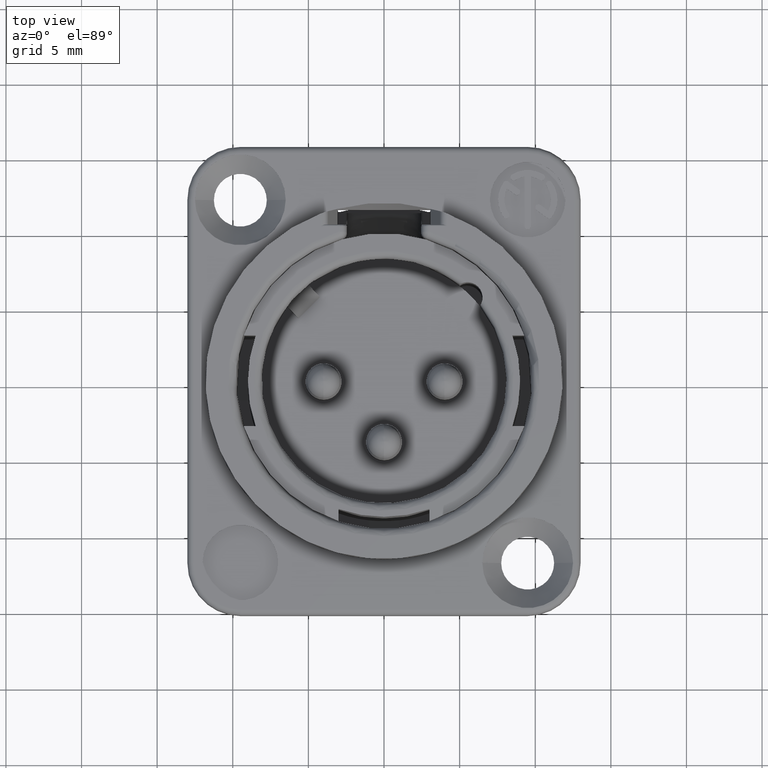
[diagram: clean part render]
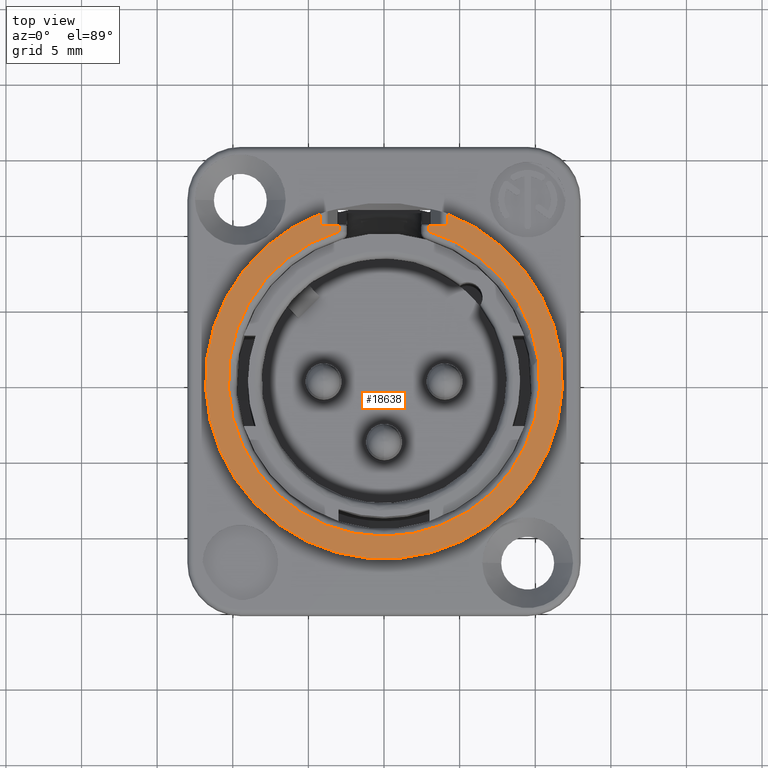
[diagram: same view with one face highlighted and labeled with its STEP entity id]
A machine part, top view. The second image highlights one B-rep face of the part: STEP entity #18638.
In plain terms, the highlighted planar face has unit normal (0, 0, 1).
Its self-contained STEP definition (entity closure, byte-faithful):
#4245=DIRECTION('',(9.999999999828E-1,-6.771026219605E-12,5.864611096522E-6));
#4246=VECTOR('',#4245,1.216764306315E0);
#4247=CARTESIAN_POINT('',(2.968636455980E0,1.021264919308E1,4.699992864151E0));
#4248=LINE('',#4247,#4246);
#4249=DIRECTION('',(9.999999999828E-1,1.355373167066E-11,-5.865633015188E-6));
#4250=VECTOR('',#4249,1.216764305043E0);
#4251=CARTESIAN_POINT('',(-4.185400762274E0,1.021264919307E1,4.7E0));
#4252=LINE('',#4251,#4250);
#4253=DIRECTION('',(-7.136213583825E-9,9.999999997994E-1,-2.002863686655E-5));
#4254=VECTOR('',#4253,3.563444144183E-1);
#4255=CARTESIAN_POINT('',(-2.968636454710E0,9.856304778739E0,4.7E0));
#4256=LINE('',#4255,#4254);
#4257=CARTESIAN_POINT('',(0.E0,0.E0,4.7E0));
#4258=DIRECTION('',(0.E0,0.E0,1.E0));
#4259=DIRECTION('',(-2.883920699604E-1,9.575124093107E-1,0.E0));
#4260=AXIS2_PLACEMENT_3D('',#4257,#4258,#4259);
#4262=DIRECTION('',(-3.566350167230E-9,-9.999999997995E-1,2.002531860740E-5));
#4263=VECTOR('',#4262,3.563413691388E-1);
#4264=CARTESIAN_POINT('',(2.968636455980E0,1.021264919308E1,4.699992864151E0));
#4265=LINE('',#4264,#4263);
#4280=DIRECTION('',(0.E0,-1.E0,0.E0));
#4281=VECTOR('',#4280,8.201392332153E-1);
#4282=CARTESIAN_POINT('',(4.185400762274E0,1.103278842628E1,4.7E0));
#4283=LINE('',#4282,#4281);
#4298=CARTESIAN_POINT('',(-4.185400762274E0,1.103278842628E1,4.7E0));
#4306=CARTESIAN_POINT('',(0.E0,0.E0,4.7E0));
#4307=DIRECTION('',(0.E0,0.E0,1.E0));
#4308=DIRECTION('',(-3.546949798538E-1,9.349820700241E-1,0.E0));
#4309=AXIS2_PLACEMENT_3D('',#4306,#4307,#4308);
#4317=CARTESIAN_POINT('',(4.185400762274E0,1.103278842628E1,4.7E0));
#4374=DIRECTION('',(0.E0,1.E0,0.E0));
#4375=VECTOR('',#4374,8.201392332153E-1);
#4376=CARTESIAN_POINT('',(-4.185400762274E0,1.021264919307E1,4.7E0));
#4377=LINE('',#4376,#4375);
#4405=CARTESIAN_POINT('',(-2.968636457253E0,1.021264919309E1,4.699992862907E0));
#10815=VERTEX_POINT('',#4317);
#10816=VERTEX_POINT('',#4298);
#12418=CARTESIAN_POINT('',(-2.968603124594E0,9.856284642317E0,4.7E0));
#12419=CARTESIAN_POINT('',(2.968599760963E0,9.856285655405E0,4.7E0));
#12420=VERTEX_POINT('',#12418);
#12421=VERTEX_POINT('',#12419);
#12432=VERTEX_POINT('',#4405);
#12438=CARTESIAN_POINT('',(2.968636455980E0,1.021264919308E1,4.699992864151E0));
#12439=CARTESIAN_POINT('',(4.185400762274E0,1.021264919307E1,4.7E0));
#12440=VERTEX_POINT('',#12438);
#12441=VERTEX_POINT('',#12439);
#12442=CARTESIAN_POINT('',(-4.185400762274E0,1.021264919307E1,4.7E0));
#12443=VERTEX_POINT('',#12442);
#18617=CARTESIAN_POINT('',(0.E0,0.E0,4.7E0));
#18618=DIRECTION('',(0.E0,0.E0,1.E0));
#18619=DIRECTION('',(1.E0,0.E0,0.E0));
#18620=AXIS2_PLACEMENT_3D('',#18617,#18618,#18619);
#18621=PLANE('',#18620);
#18623=ORIENTED_EDGE('',*,*,#18622,.T.);
#18625=ORIENTED_EDGE('',*,*,#18624,.F.);
#18627=ORIENTED_EDGE('',*,*,#18626,.F.);
#18629=ORIENTED_EDGE('',*,*,#18628,.F.);
#18631=ORIENTED_EDGE('',*,*,#18630,.T.);
#18633=ORIENTED_EDGE('',*,*,#18632,.F.);
#18634=ORIENTED_EDGE('',*,*,#18609,.T.);
#18635=ORIENTED_EDGE('',*,*,#14812,.F.);
#18636=EDGE_LOOP('',(#18623,#18625,#18627,#18629,#18631,#18633,#18634,#18635));
#18637=FACE_OUTER_BOUND('',#18636,.F.);
#18638=ADVANCED_FACE('',(#18637),#18621,.T.);
#4261=CIRCLE('',#4260,1.029363645471E1);
#4310=CIRCLE('',#4309,1.18E1);
#14812=EDGE_CURVE('',#12440,#12421,#4265,.T.);
#18609=EDGE_CURVE('',#12420,#12421,#4261,.T.);
#18622=EDGE_CURVE('',#12440,#12441,#4248,.T.);
#18624=EDGE_CURVE('',#10815,#12441,#4283,.T.);
#18626=EDGE_CURVE('',#10816,#10815,#4310,.T.);
#18628=EDGE_CURVE('',#12443,#10816,#4377,.T.);
#18630=EDGE_CURVE('',#12443,#12432,#4252,.T.);
#18632=EDGE_CURVE('',#12420,#12432,#4256,.T.);